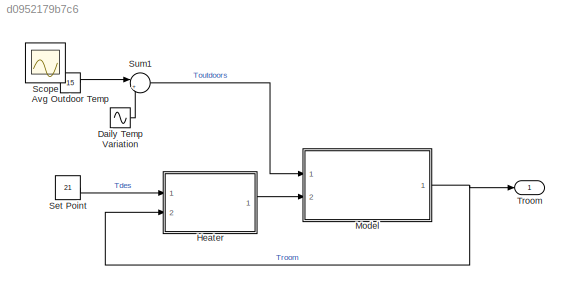
MODEL slx_d0952179b7c6
KIND model
CONFIG AbsTol = 1e-6
CONFIG EnableMultiTasking = off
CONFIG FixedStep = 1
CONFIG MaxStep = auto
CONFIG MinStep = auto
CONFIG PreLoadFcn = load house_heat_data.mat;
CONFIG RelTol = 1e-3
CONFIG SampleTimeConstraint = Unconstrained
CONFIG Solver = ode45
CONFIG SolverName = ode45
CONFIG StartTime = 0.0
CONFIG StopTime = 48
BLOCK [Constant] Avg Outdoor Temp
  Value = 15
BLOCK [Sin] Daily Temp Variation
  Amplitude = 5
  Frequency = 2*pi/24
  Ports = [0, 1]
  SampleTime = 0
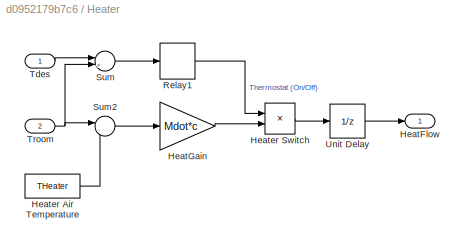
BLOCK [SubSystem] Heater
  Ports = [2, 1]
  RequestExecContextInheritance = off
BLOCK [Outport] Heater/HeatFlow
  IconDisplay = Port number
BLOCK [Gain] Heater/HeatGain
  Gain = Mdot*c
  OutDataTypeStr = Inherit: Inherit via internal rule
  ParamDataTypeStr = Inherit: Inherit via internal rule
  SaturateOnIntegerOverflow = off
BLOCK [Constant] Heater/Heater Air Temperature
  Value = THeater
BLOCK [Product] Heater/Heater Switch
  InputSameDT = off
  OutDataTypeStr = Inherit: Inherit via internal rule
  Ports = [2, 1]
  SaturateOnIntegerOverflow = off
BLOCK [Relay] Heater/Relay1
  OffSwitchValue = -1
  OnSwitchValue = 1
BLOCK [Sum] Heater/Sum
  IconShape = round
  Inputs = |+-
  Ports = [2, 1]
BLOCK [Sum] Heater/Sum2
  IconShape = round
  InputSameDT = off
  Inputs = |-+
  OutDataTypeStr = Inherit: Inherit via internal rule
  Ports = [2, 1]
  SaturateOnIntegerOverflow = off
BLOCK [Inport] Heater/Tdes
  IconDisplay = Port number
BLOCK [Inport] Heater/Troom
  IconDisplay = Port number
  Port = 2
BLOCK [UnitDelay] Heater/Unit Delay
  InputProcessing = Elements as channels (sample based)
  SampleTime = 1/360
BLOCK [ModelReference] Model
  ModelNameDialog = house_model
  ModelReferenceVersion = 1.9
  Ports = [2, 1]
BLOCK [Scope] Scope
  Floating = off
  IOType = viewer
  NumInputPorts = 1
  Ports = []
  ScopeSpecificationString = Simulink.scopes.TimeScopeBlockCfg('CurrentConfiguration', extmgr.ConfigurationSet(extmgr.Configuration('Core','General UI',true),extmgr.Configuration('Core','Source UI',true),extmgr.Configuration('Sources','WiredSimulink',true,'DataLoggingMaxPoints','7500','DataLoggingSaveFormat','Array','DataLoggingDecimation','1'),extmgr.Configuration('Visuals','Time Domain',true,'SerializedDisplays',{struct('Mi...<+2850ch>
BLOCK [Constant] Set Point
  Value = 21
BLOCK [Sum] Sum1
  IconShape = round
  Inputs = |++
  Ports = [2, 1]
BLOCK [Outport] Troom
  IconDisplay = Port number
LINE Avg Outdoor Temp:1 -> Sum1:1
LINE Daily Temp Variation:1 -> Sum1:2
LINE Heater/HeatGain:1 -> Heater/Heater Switch:2
LINE Heater/Heater Air Temperature:1 -> Heater/Sum2:2
LINE Heater/Heater Switch:1 -> Heater/Unit Delay:1
LINE Heater/Relay1:1 -> Heater/Heater Switch:1
LINE Heater/Sum2:1 -> Heater/HeatGain:1
LINE Heater/Sum:1 -> Heater/Relay1:1
LINE Heater/Tdes:1 -> Heater/Sum:1
NET Heater/Troom:1 -> Heater/Sum2:1, Heater/Sum:2
LINE Heater/Unit Delay:1 -> Heater/HeatFlow:1
LINE Heater:1 -> Model:2
NET Model:1 -> Heater:2, Troom:1
LINE Set Point:1 -> Heater:1
LINE Sum1:1 -> Model:1
note: NET lines group one-source signal fan-out (src -> all destinations, sorted); 1:1 wires keep LINE
